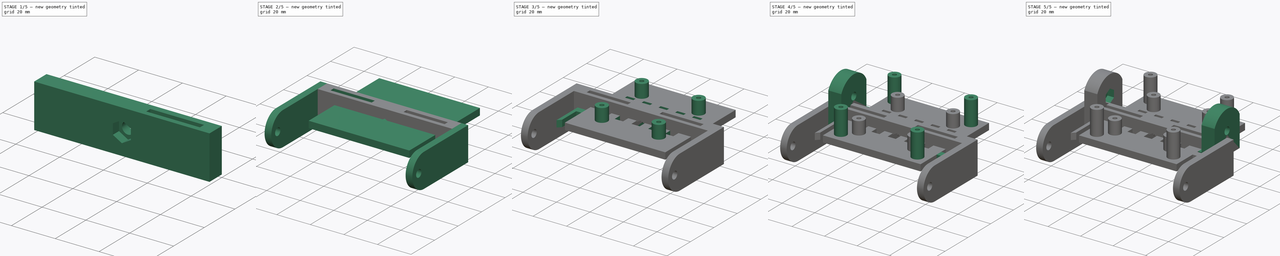
[diagram: build sequence overview — one tinted view per stage of 5, left to right]
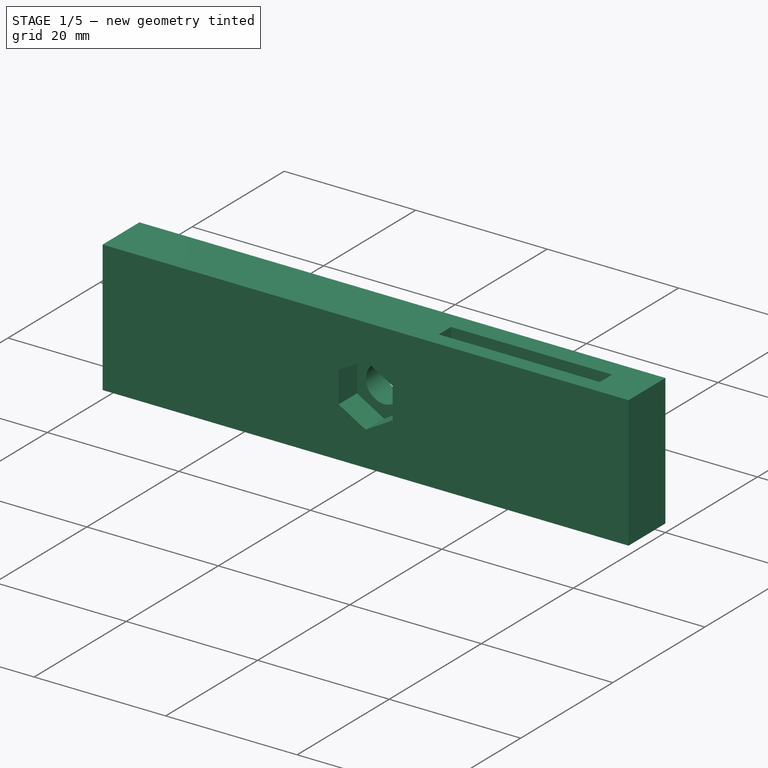
[diagram: stage 1 of 5 — iso view after this stage's code; geometry added in this stage tinted green]
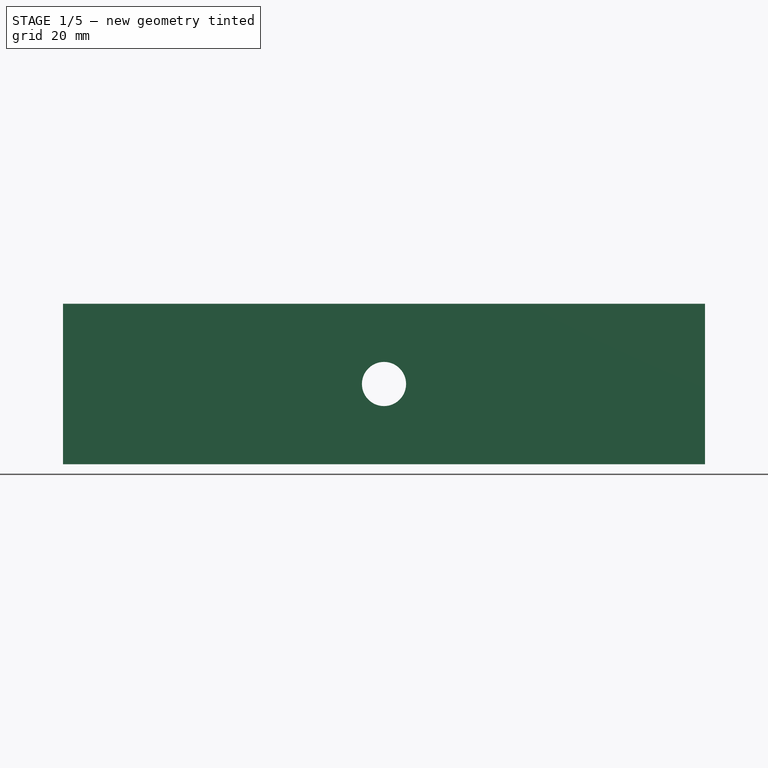
[diagram: stage 1 of 5 — front view after this stage's code; geometry added in this stage tinted green]
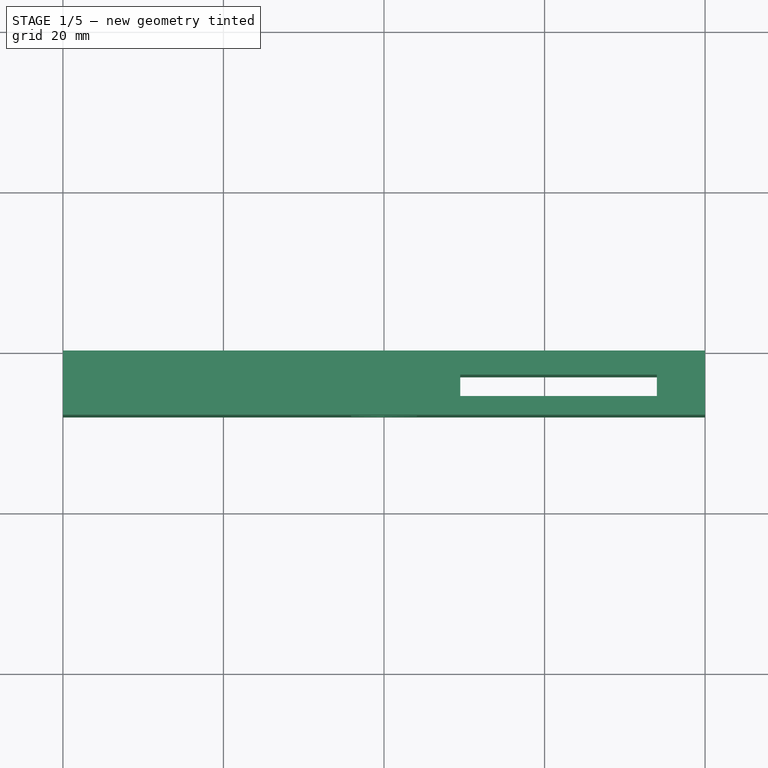
[diagram: stage 1 of 5 — top view after this stage's code; geometry added in this stage tinted green]
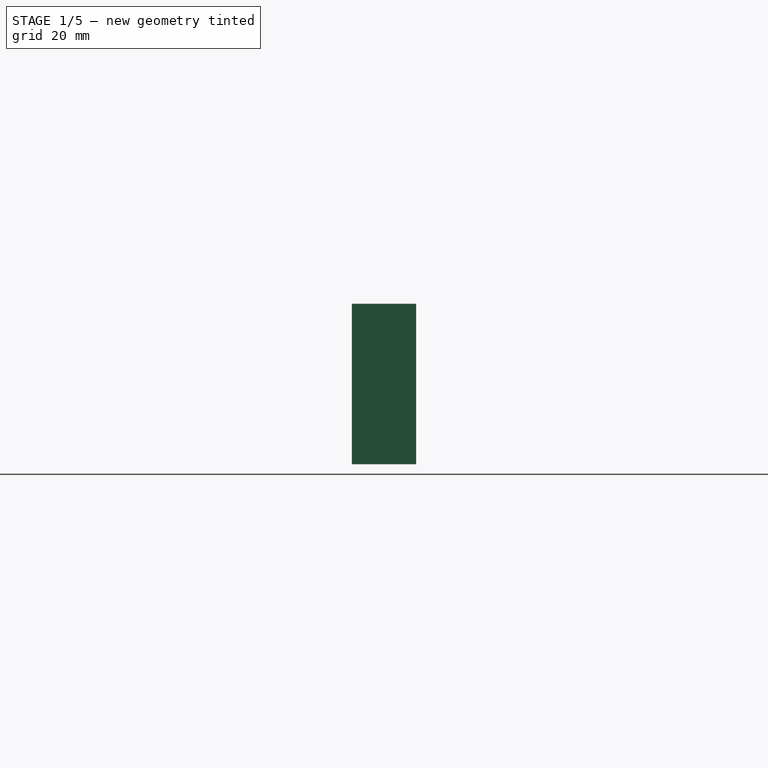
[diagram: stage 1 of 5 — right view after this stage's code; geometry added in this stage tinted green]
FCSTD DOCUMENT  (FreeCAD 1.0R39109 (Git))
Label: LED Light Mount
License: All rights reserved
LicenseURL: https://en.wikipedia.org/wiki/All_rights_reserved
objects: Sketcher::SketchObject×12, PartDesign::Pad×8, PartDesign::Mirrored×5, PartDesign::Pocket×4, PartDesign::Body×3, App::Link×1, App::Part×1
note: 73 computed .brp shape members not serialized (recipe doc carries the construction recipe); baked Part::Feature solids carry a one-line shape summary decoded from their .brp
EXTERNAL_REF file=../Master Document.FCStd obj=Spreadsheet

FEATURE [PartDesign::Body] Body  label="LED Back Plate"
  AllowCompound = false
  Group = -> [Sketch,Pad,Sketch001,Pad001,Sketch003,Sketch009,Pocket008,Sketch012,Pad006,Mirrored005,Sketch014,Sketch015,Pad007,Pad008,Pad009,Sketch016,Pocket,Mirrored,Mirrored006]
  Origin = -> Origin001
  Placement = pos=(0,40.4356,22.1702) rot=(1,0,0;3.40339rad)
  Tip = -> Mirrored006
FEATURE [PartDesign::Pad] Pad010  label="Gimbal Base Pad"
  Direction = (0,-1,2e-16)
  Length = 8
  Length2 = 10
  Placement = pos=(0,0,0) rot=(1,0,0;1.5708rad)
  Profile = -> Sketch005
  ReferenceAxis = -> Sketch005 [N_Axis]
  Suppressed = false
  Type = 0
  expr: Length = <<Monitor Chassis Parameters>>.GSCamPlateThickness * 2
FEATURE [Sketcher::SketchObject] Sketch017
  ArcFitTolerance = 1e-06
  AttachmentSupport = -> [Pad010]
  FullyConstrained = false
  MakeInternals = false
  MapMode = 5
  Placement = pos=(-40,0,0) rot=(0.707107,0,-0.707107;3.14159rad)
  expr: Constraints[11] = <<Monitor Chassis Parameters>>.GSLEDGimbalHoleHeight - <<Monitor Chassis Parameters>>.GSCamAxisHoleDiameter
  expr: Constraints[12] = 0.5 * <<Monitor Chassis Parameters>>.GSCamGimbalDepth
  expr: Constraints[13] = 0.5 * <<Monitor Chassis Parameters>>.GSCamGimbalDepth
  expr: Constraints[6] = <<Monitor Chassis Parameters>>.GSCamAxisHoleDiameter
  expr: Constraints[7] = <<Monitor Chassis Parameters>>.GSLEDGimbalHoleHeight
  sketch-geometry (5):
    g0: LineSegment StartX=-10 StartY=0 StartZ=0 EndX=10 EndY=0 EndZ=0
    g1: LineSegment StartX=10 StartY=0 StartZ=0 EndX=10 EndY=37.5 EndZ=0
    g2: LineSegment StartX=-10 StartY=37.5 StartZ=0 EndX=-10 EndY=0 EndZ=0
    g3: ArcOfCircle CenterX=8e-16 CenterY=37.5 CenterZ=0 NormalX=0 NormalY=0 NormalZ=1 AngleXU=0 Radius=10 StartAngle=0 EndAngle=3.14159
    g4: Circle CenterX=0 CenterY=42 CenterZ=0 NormalX=0 NormalY=0 NormalZ=1 AngleXU=0 Radius=2.25
  constraints (14):
    c: Coincident(g0,g1)
    c: Coincident(g2,g0)
    c: Vertical(g1)
    c: Vertical(g2)
    c: Coincident(g3,g1)
    c: PointOnObject(g4,g-2)
    c: Diameter(g4) = 4.5
    c: DistanceY(g-1,g4) = 42
    c: Horizontal(g3,g3)
    c: Horizontal(g1,g3)
    c: Coincident(g3,g2)
    c: DistanceY(g-1,g3) = 37.5
    c: DistanceX(g0,g-1) = 10
    c: DistanceX(g-1,g0) = 10
FEATURE [PartDesign::Pocket] Pocket009  label="Base Nut Indent Pocket"
  BaseFeature = -> Pad010
  Direction = (0,1,0)
  Length = 4
  Length2 = 5
  Placement = pos=(0,0,0) rot=(1,0,0;1.5708rad)
  Profile = -> Sketch007
  ReferenceAxis = -> Sketch007 [N_Axis]
  Suppressed = false
  Type = 0
  expr: Length = <<Monitor Chassis Parameters>>.GSCamM5NutDepth
FEATURE [PartDesign::Pocket] Pocket010  label="Lightening Pocket"
  BaseFeature = -> Pocket009
  Direction = (0,0,-1)
  Length = 5
  Length2 = 5
  Placement = pos=(0,0,0) rot=(1,0,0;1.5708rad)
  Profile = -> Sketch011
  ReferenceAxis = -> Sketch011 [N_Axis]
  Suppressed = false
  Type = 1
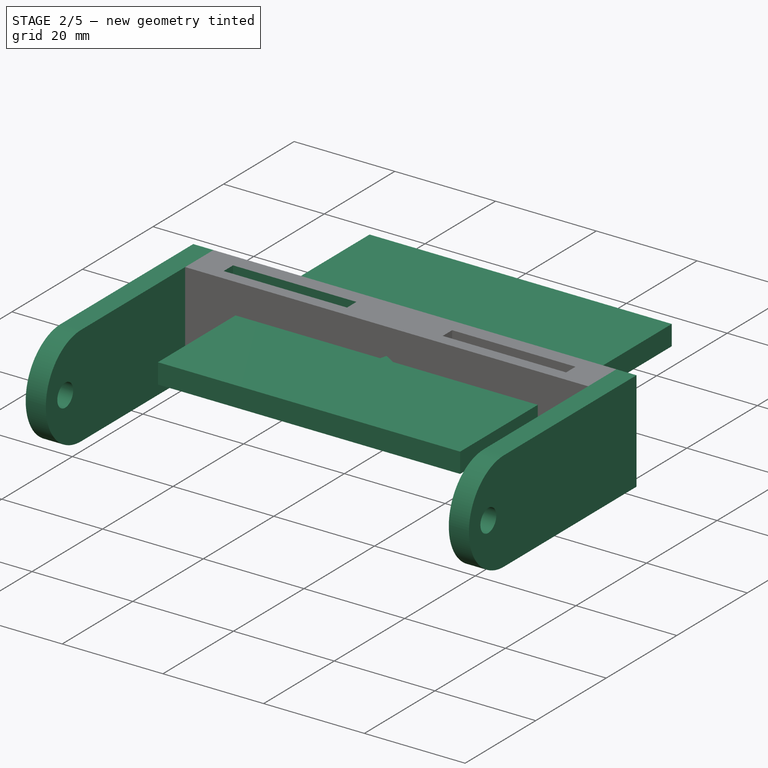
[diagram: stage 2 of 5 — iso view after this stage's code; geometry added in this stage tinted green]
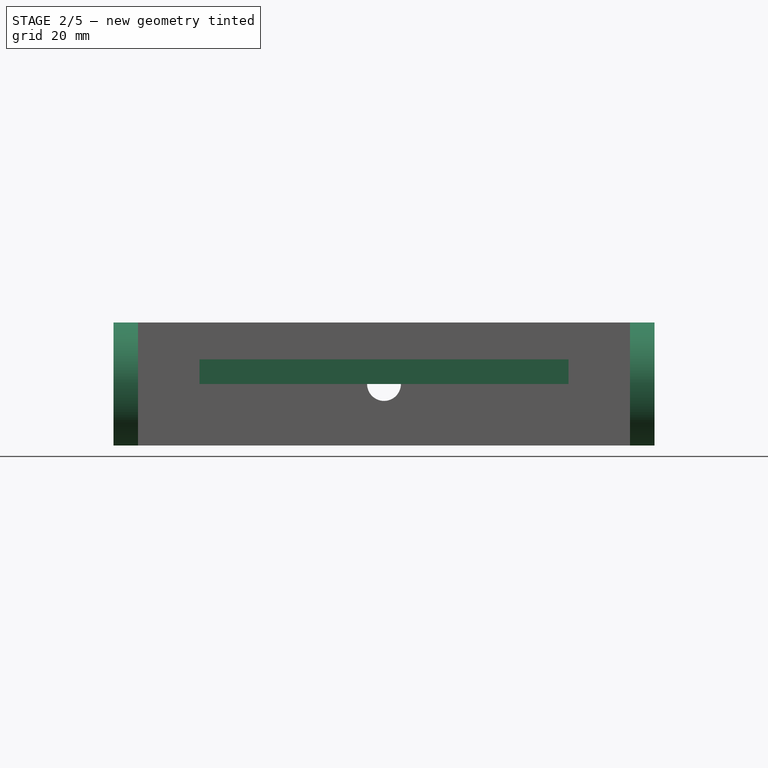
[diagram: stage 2 of 5 — front view after this stage's code; geometry added in this stage tinted green]
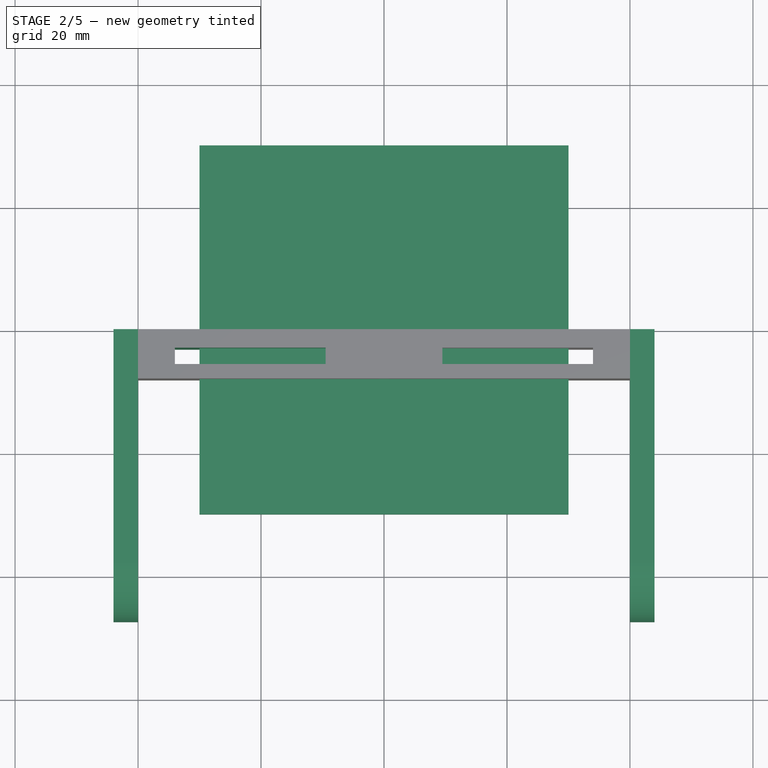
[diagram: stage 2 of 5 — top view after this stage's code; geometry added in this stage tinted green]
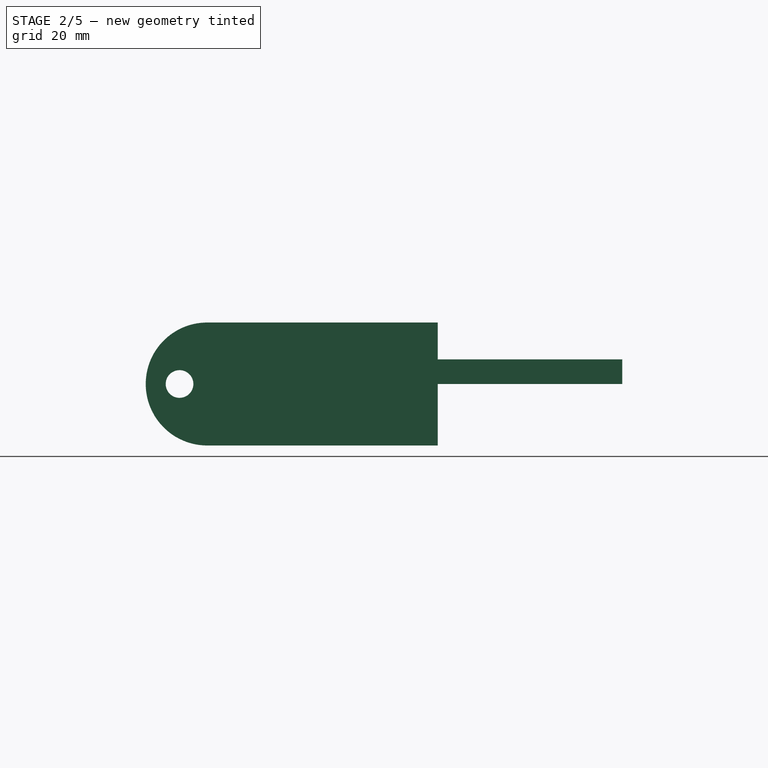
[diagram: stage 2 of 5 — right view after this stage's code; geometry added in this stage tinted green]
FEATURE [Sketcher::SketchObject] Sketch
  ArcFitTolerance = 0
  AttachmentSupport = -> [XY_Plane001]
  FullyConstrained = true
  MakeInternals = false
  MapMode = 5
  expr: Constraints[10] = <<Monitor Chassis Parameters>>.GSLEDBoardHeight / 2
  expr: Constraints[11] = <<Monitor Chassis Parameters>>.GSLEDBoardHeight / 2
  expr: Constraints[8] = <<Monitor Chassis Parameters>>.GSLEDBoardWidth
  expr: Constraints[9] = <<Monitor Chassis Parameters>>.GSLEDBoardHeight
  sketch-geometry (4):
    g0: LineSegment StartX=-30 StartY=30 StartZ=0 EndX=30 EndY=30 EndZ=0
    g1: LineSegment StartX=30 StartY=30 StartZ=0 EndX=30 EndY=-30 EndZ=0
    g2: LineSegment StartX=30 StartY=-30 StartZ=0 EndX=-30 EndY=-30 EndZ=0
    g3: LineSegment StartX=-30 StartY=-30 StartZ=0 EndX=-30 EndY=30 EndZ=0
  constraints (12):
    c: Coincident(g0,g1)
    c: Coincident(g1,g2)
    c: Coincident(g2,g3)
    c: Coincident(g3,g0)
    c: Horizontal(g0)
    c: Horizontal(g2)
    c: Vertical(g1)
    c: Vertical(g3)
    c: DistanceX(g0,g0) = 60
    c: DistanceY(g1,g1) = 60
    c: DistanceX(g2,g-1) = 30
    c: DistanceY(g2,g-1) = 30
FEATURE [PartDesign::Pad] Pad  label="Back Plate Pad"
  Direction = (0,0,1)
  Length = 4
  Length2 = 10
  Profile = -> Sketch
  ReferenceAxis = -> Sketch [N_Axis]
  Suppressed = false
  Type = 0
  expr: Length = <<Monitor Chassis Parameters>>.GSCamPlateThickness
FEATURE [PartDesign::Pad] Pad011  label="Gimbal Riser"
  BaseFeature = -> Pocket010
  Direction = (-1,0,-2e-16)
  Length = 4
  Length2 = 10
  Placement = pos=(0,0,0) rot=(1,0,0;1.5708rad)
  Profile = -> Sketch017
  ReferenceAxis = -> Sketch017 [N_Axis]
  Suppressed = false
  Type = 0
  expr: Length = <<Monitor Chassis Parameters>>.GSCamPlateThickness
FEATURE [PartDesign::Mirrored] Mirrored007  label="Gimbal Riser Mirror"
  BaseFeature = -> Pad011
  MirrorPlane = -> YZ_Plane003
  Originals = -> [Pad011]
  Placement = pos=(0,0,0) rot=(1,0,0;1.5708rad)
  Suppressed = false
  TransformMode = 0
FEATURE [PartDesign::Mirrored] Mirrored008  label="Lightening Pocket Mirror"
  BaseFeature = -> Mirrored007
  MirrorPlane = -> YZ_Plane003
  Originals = -> [Pocket010]
  Placement = pos=(0,0,0) rot=(1,0,0;1.5708rad)
  Suppressed = false
  TransformMode = 0
FEATURE [PartDesign::Body] Body002  label="LED Gimbal"
  AllowCompound = false
  Group = -> [Sketch005,Sketch007,Sketch011,Pad010,Sketch017,Pocket009,Pocket010,Pad011,Mirrored007,Mirrored008]
  Origin = -> Origin003
  Placement = pos=(0,2,9) rot=(1,0,0;3.14159rad)
  Tip = -> Mirrored008
FEATURE [App::Part] Part  label="LED Light Mount Object"
  Group = -> [Body,Body001,Body002]
  Origin = -> Origin
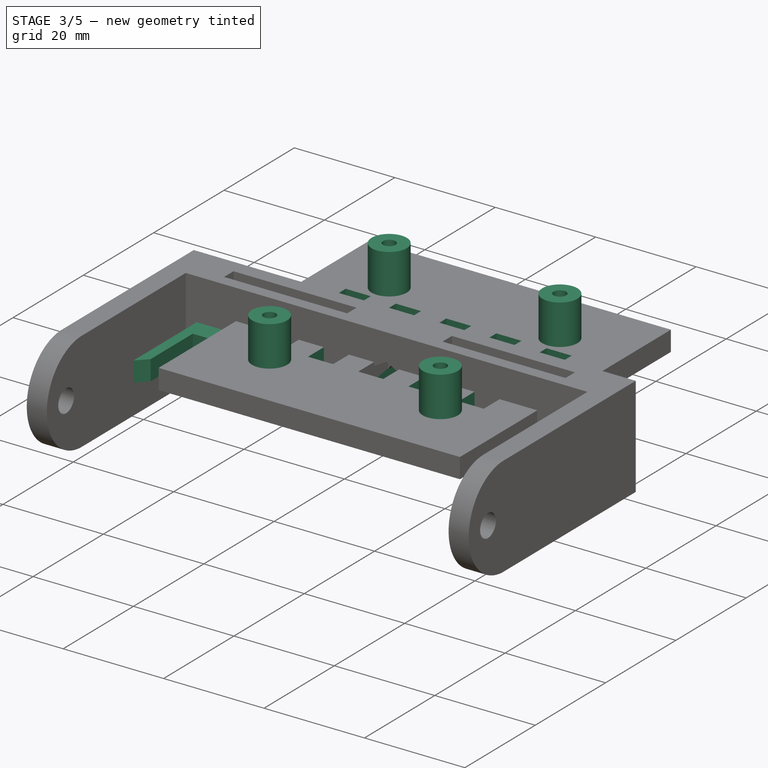
[diagram: stage 3 of 5 — iso view after this stage's code; geometry added in this stage tinted green]
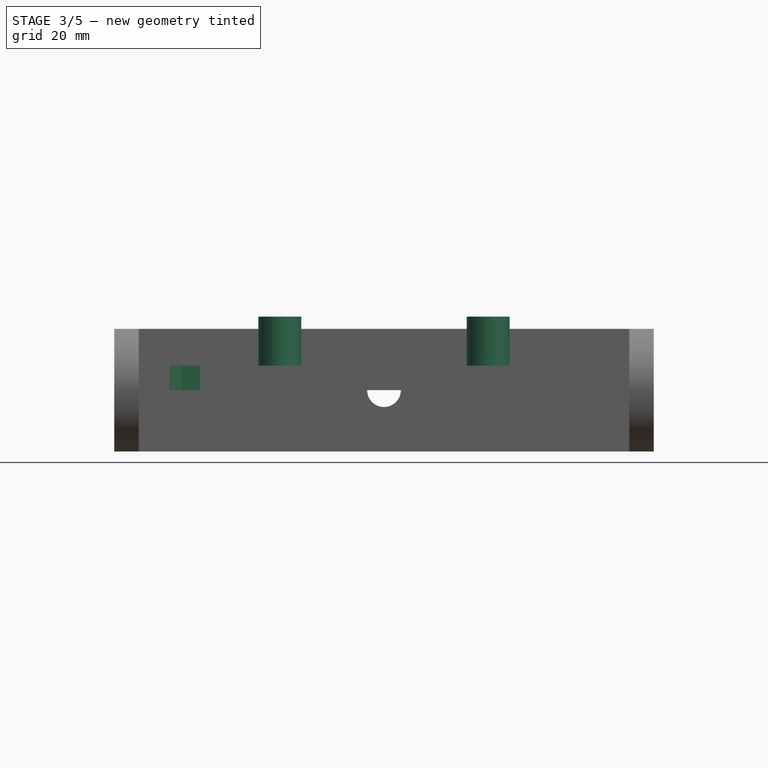
[diagram: stage 3 of 5 — front view after this stage's code; geometry added in this stage tinted green]
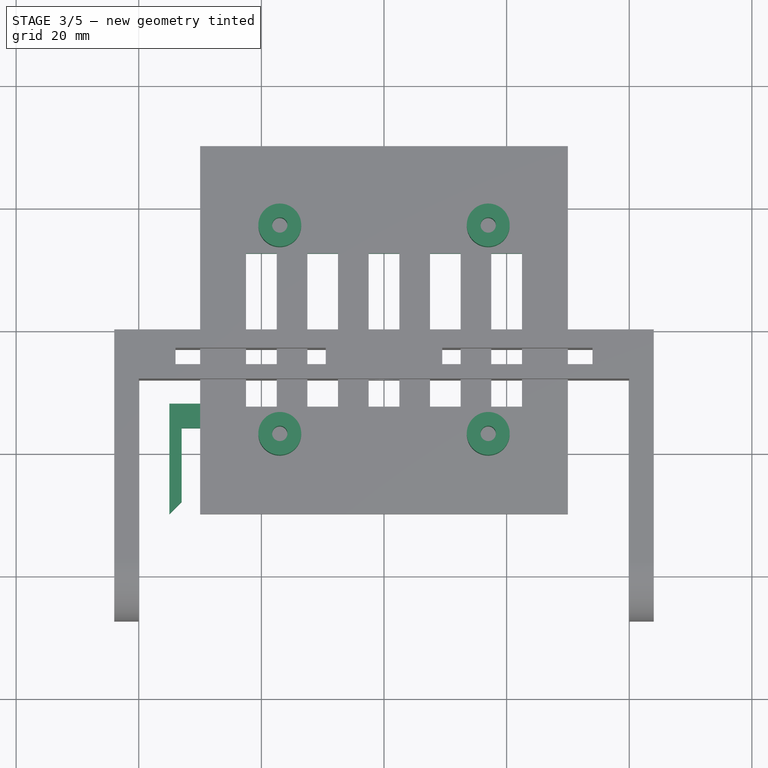
[diagram: stage 3 of 5 — top view after this stage's code; geometry added in this stage tinted green]
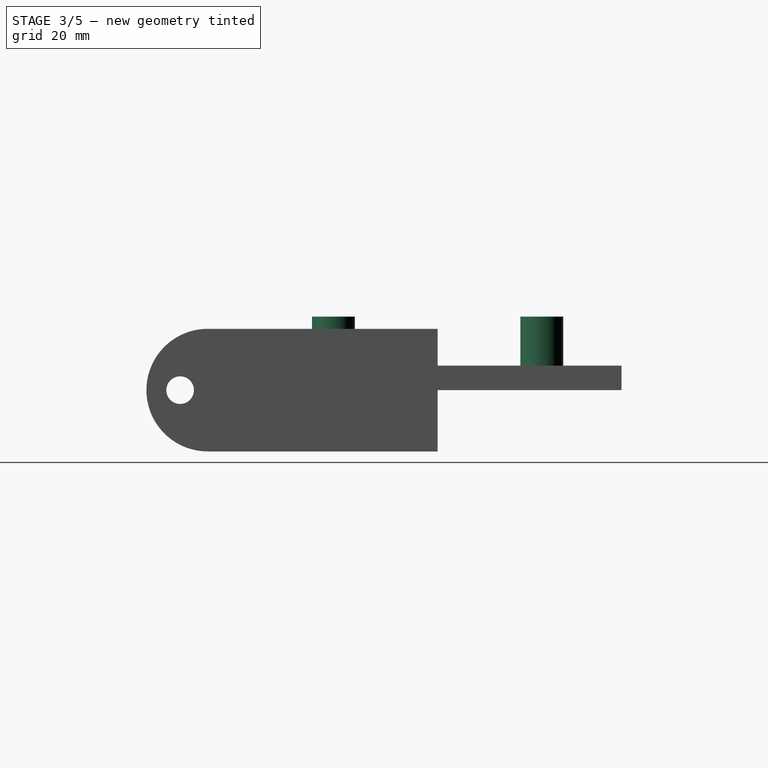
[diagram: stage 3 of 5 — right view after this stage's code; geometry added in this stage tinted green]
FEATURE [Sketcher::SketchObject] Sketch001
  ArcFitTolerance = 0
  AttachmentSupport = -> [Pad]
  FullyConstrained = true
  MakeInternals = false
  MapMode = 5
  Placement = pos=(0,0,4) rot=(0,0,1;0rad)
  expr: Constraints[0] = <<Monitor Chassis Parameters>>.GSLEDMountHoleDiameter
  expr: Constraints[11] = <<Monitor Chassis Parameters>>.GSLEDMountingHoleSeparation
  expr: Constraints[12] = 0.5 * <<Monitor Chassis Parameters>>.GSLEDMountingHoleSeparation
  expr: Constraints[13] = <<Monitor Chassis Parameters>>.GSLEDMountingHoleSeparation
  expr: Constraints[14] = 0.5 * <<Monitor Chassis Parameters>>.GSLEDMountingHoleSeparation
  expr: Constraints[2] = <<Monitor Chassis Parameters>>.GSLEDMountingRiserOuterDiameter
  expr: Constraints[3] = <<Monitor Chassis Parameters>>.GSLEDMountHoleDiameter
  expr: Constraints[4] = <<Monitor Chassis Parameters>>.GSLEDMountHoleDiameter
  expr: Constraints[5] = <<Monitor Chassis Parameters>>.GSLEDMountHoleDiameter
  expr: Constraints[6] = <<Monitor Chassis Parameters>>.GSLEDMountingRiserOuterDiameter
  expr: Constraints[7] = <<Monitor Chassis Parameters>>.GSLEDMountingRiserOuterDiameter
  expr: Constraints[8] = <<Monitor Chassis Parameters>>.GSLEDMountingRiserOuterDiameter
  sketch-geometry (8):
    g0: Circle CenterX=-17 CenterY=17 CenterZ=0 NormalX=0 NormalY=0 NormalZ=1 AngleXU=0 Radius=1.25
    g1: Circle CenterX=-17 CenterY=17 CenterZ=0 NormalX=0 NormalY=0 NormalZ=1 AngleXU=0 Radius=3.5
    g2: Circle CenterX=17 CenterY=17 CenterZ=0 NormalX=0 NormalY=0 NormalZ=1 AngleXU=0 Radius=1.25
    g3: Circle CenterX=-17 CenterY=-17 CenterZ=0 NormalX=0 NormalY=0 NormalZ=1 AngleXU=0 Radius=1.25
    g4: Circle CenterX=17 CenterY=-17 CenterZ=0 NormalX=0 NormalY=0 NormalZ=1 AngleXU=0 Radius=1.25
    g5: Circle CenterX=-17 CenterY=-17 CenterZ=0 NormalX=0 NormalY=0 NormalZ=1 AngleXU=0 Radius=3.5
    g6: Circle CenterX=17 CenterY=-17 CenterZ=0 NormalX=0 NormalY=0 NormalZ=1 AngleXU=0 Radius=3.5
    g7: Circle CenterX=17 CenterY=17 CenterZ=0 NormalX=0 NormalY=0 NormalZ=1 AngleXU=0 Radius=3.5
  constraints (20):
    c: Diameter(g0) = 2.5
    c: Coincident(g1,g0)
    c: Diameter(g1) = 7
    c: Diameter(g2) = 2.5
    c: Diameter(g3) = 2.5
    c: Diameter(g4) = 2.5
    c: Diameter(g6) = 7
    c: Diameter(g5) = 7
    c: Diameter(g7) = 7
    c: Coincident(g7,g2)
    c: Coincident(g6,g4)
    c: DistanceX(g0,g2) = 34
    c: DistanceX(g0,g-1) = 17
    c: DistanceY(g3,g0) = 34
    c: DistanceY(g-1,g0) = 17
    c: Vertical(g0,g3)
    c: Horizontal(g0,g2)
    c: Vertical(g2,g4)
    c: Horizontal(g4,g3)
    c: Coincident(g5,g3)
FEATURE [PartDesign::Pad] Pad001  label="LED Risers Pad"
  BaseFeature = -> Pad
  Direction = (0,0,1)
  Length = 8
  Length2 = 10
  Profile = -> Sketch001
  ReferenceAxis = -> Sketch001 [N_Axis]
  Suppressed = false
  Type = 0
  expr: Length = <<Monitor Chassis Parameters>>.GSLEDMountingRiserHeight
FEATURE [Sketcher::SketchObject] Sketch005
  ArcFitTolerance = 0
  AttachmentSupport = -> [XZ_Plane003]
  FullyConstrained = true
  MakeInternals = false
  MapMode = 5
  Placement = pos=(0,0,0) rot=(1,0,0;1.5708rad)
  expr: Constraints[10] = <<Monitor Chassis Parameters>>.GSCamGimbalDepth
  expr: Constraints[11] = <<Monitor Chassis Parameters>>.GSCamGimbalDepth / 2
  expr: Constraints[13] = <<Monitor Chassis Parameters>>.GSCamM5ScrewHoleDiameter
  expr: Constraints[8] = <<Monitor Chassis Parameters>>.GSLEDBoardWidth + 2 * (<<Monitor Chassis Parameters>>.GSLEDBoardWingThickness + <<Monitor Chassis Parameters>>.GSCamPlateThickness * 2)
  expr: Constraints[9] = 0.5 * <<Monitor Chassis Parameters>>.GSLEDGimbalBaseLength
  sketch-geometry (5):
    g0: LineSegment StartX=-40 StartY=-10 StartZ=0 EndX=40 EndY=-10 EndZ=0
    g1: LineSegment StartX=40 StartY=-10 StartZ=0 EndX=40 EndY=10 EndZ=0
    g2: LineSegment StartX=40 StartY=10 StartZ=0 EndX=-40 EndY=10 EndZ=0
    g3: LineSegment StartX=-40 StartY=10 StartZ=0 EndX=-40 EndY=-10 EndZ=0
    g4: Circle CenterX=0 CenterY=0 CenterZ=0 NormalX=0 NormalY=0 NormalZ=1 AngleXU=0 Radius=2.75
  constraints (14):
    c: Coincident(g0,g1)
    c: Coincident(g1,g2)
    c: Coincident(g2,g3)
    c: Coincident(g3,g0)
    c: Horizontal(g0)
    c: Horizontal(g2)
    c: Vertical(g1)
    c: Vertical(g3)
    c: DistanceX(g0,g0) = 80
    c: DistanceX(g0,g-1) = 40
    c: DistanceY(g1,g1) = 20
    c: DistanceY(g0,g-1) = 10
    c: Coincident(g4,g-1)
    c: Diameter(g4) = 5.5
FEATURE [Sketcher::SketchObject] Sketch007
  ArcFitTolerance = 0
  FullyConstrained = true
  MakeInternals = false
  MapMode = 5
  Placement = pos=(0,-8,0) rot=(1,0,0;1.5708rad)
  expr: Constraints[19] = <<Monitor Chassis Parameters>>.GSCamM5NutHexagonDiameter
  sketch-geometry (7):
    g0: LineSegment StartX=4.11362 StartY=2.375 StartZ=0 EndX=0 EndY=4.75 EndZ=0
    g1: LineSegment StartX=0 StartY=4.75 StartZ=0 EndX=-4.11362 EndY=2.375 EndZ=0
    g2: LineSegment StartX=-4.11362 StartY=2.375 StartZ=0 EndX=-4.11362 EndY=-2.375 EndZ=0
    g3: LineSegment StartX=-4.11362 StartY=-2.375 StartZ=0 EndX=0 EndY=-4.75 EndZ=0
    g4: LineSegment StartX=0 StartY=-4.75 StartZ=0 EndX=4.11362 EndY=-2.375 EndZ=0
    g5: LineSegment StartX=4.11362 StartY=-2.375 StartZ=0 EndX=4.11362 EndY=2.375 EndZ=0
    g6: Circle [constr] CenterX=0 CenterY=0 CenterZ=0 NormalX=0 NormalY=0 NormalZ=1 AngleXU=0 Radius=4.75
  constraints (16):
    c: Coincident(g0,g1)
    c: Coincident(g1,g2)
    c: Coincident(g2,g3)
    c: Coincident(g3,g4)
    c: Coincident(g4,g5)
    c: Coincident(g5,g0)
    c: Equal(g0, g1-g5) x5
    c: PointOnObject(g0,g6)
    c: PointOnObject(g1,g6)
    c: PointOnObject(g2,g6)
    c: PointOnObject(g3,g6)
    c: PointOnObject(g4,g6)
    c: PointOnObject(g5,g6)
    c: Coincident(g6,g-1)
    c: Horizontal(g1,g0)
    c: Diameter(g6) = 9.5
FEATURE [Sketcher::SketchObject] Sketch009
  ArcFitTolerance = 0
  FullyConstrained = true
  MakeInternals = false
  MapMode = 5
  Placement = pos=(0,0,0) rot=(1,0,0;3.14159rad)
  expr: Constraints[10] = <<Monitor Chassis Parameters>>.GSLEDBackplateCoolingSlotLength
  expr: Constraints[11] = 0.5 * <<Monitor Chassis Parameters>>.GSLEDBackplateCoolingSlotLength
  expr: Constraints[52] = <<Monitor Chassis Parameters>>.GSLEDBackplateCoolingSlotWidth
  expr: Constraints[53] = <<Monitor Chassis Parameters>>.GSLEDBackplateCoolingSlotWidth
  expr: Constraints[54] = <<Monitor Chassis Parameters>>.GSLEDBackplateCoolingSlotWidth
  expr: Constraints[55] = <<Monitor Chassis Parameters>>.GSLEDBackplateCoolingSlotWidth
  expr: Constraints[56] = <<Monitor Chassis Parameters>>.GSLEDBackplateCoolingSlotWidth
  expr: Constraints[57] = <<Monitor Chassis Parameters>>.GSLEDBackplateCoolingSlotWidth
  expr: Constraints[58] = <<Monitor Chassis Parameters>>.GSLEDBackplateCoolingSlotWidth
  expr: Constraints[59] = <<Monitor Chassis Parameters>>.GSLEDBackplateCoolingSlotWidth
  expr: Constraints[8] = <<Monitor Chassis Parameters>>.GSLEDBackplateCoolingSlotWidth
  expr: Constraints[9] = 0.5 * <<Monitor Chassis Parameters>>.GSLEDBackplateCoolingSlotWidth
  sketch-geometry (20):
    g0: LineSegment StartX=-2.5 StartY=12.5 StartZ=0 EndX=2.5 EndY=12.5 EndZ=0
    g1: LineSegment StartX=2.5 StartY=12.5 StartZ=0 EndX=2.5 EndY=-12.5 EndZ=0
    g2: LineSegment StartX=2.5 StartY=-12.5 StartZ=0 EndX=-2.5 EndY=-12.5 EndZ=0
    g3: LineSegment StartX=-2.5 StartY=-12.5 StartZ=0 EndX=-2.5 EndY=12.5 EndZ=0
    g4: LineSegment StartX=7.5 StartY=12.5 StartZ=0 EndX=12.5 EndY=12.5 EndZ=0
    g5: LineSegment StartX=12.5 StartY=12.5 StartZ=0 EndX=12.5 EndY=-12.5 EndZ=0
    g6: LineSegment StartX=12.5 StartY=-12.5 StartZ=0 EndX=7.5 EndY=-12.5 EndZ=0
    g7: LineSegment StartX=7.5 StartY=-12.5 StartZ=0 EndX=7.5 EndY=12.5 EndZ=0
    g8: LineSegment StartX=17.5 StartY=12.5 StartZ=0 EndX=22.5 EndY=12.5 EndZ=0
    g9: LineSegment StartX=22.5 StartY=12.5 StartZ=0 EndX=22.5 EndY=-12.5 EndZ=0
    g10: LineSegment StartX=22.5 StartY=-12.5 StartZ=0 EndX=17.5 EndY=-12.5 EndZ=0
    g11: LineSegment StartX=17.5 StartY=-12.5 StartZ=0 EndX=17.5 EndY=12.5 EndZ=0
    g12: LineSegment StartX=-7.5 StartY=12.5 StartZ=0 EndX=-12.5 EndY=12.5 EndZ=0
    g13: LineSegment StartX=-12.5 StartY=12.5 StartZ=0 EndX=-12.5 EndY=-12.5 EndZ=0
    g14: LineSegment StartX=-12.5 StartY=-12.5 StartZ=0 EndX=-7.5 EndY=-12.5 EndZ=0
    g15: LineSegment StartX=-7.5 StartY=-12.5 StartZ=0 EndX=-7.5 EndY=12.5 EndZ=0
    g16: LineSegment StartX=-17.5 StartY=12.5 StartZ=0 EndX=-22.5 EndY=12.5 EndZ=0
    g17: LineSegment StartX=-22.5 StartY=12.5 StartZ=0 EndX=-22.5 EndY=-12.5 EndZ=0
    g18: LineSegment StartX=-22.5 StartY=-12.5 StartZ=0 EndX=-17.5 EndY=-12.5 EndZ=0
    g19: LineSegment StartX=-17.5 StartY=-12.5 StartZ=0 EndX=-17.5 EndY=12.5 EndZ=0
  constraints (60):
    c: Coincident(g0,g1)
    c: Coincident(g1,g2)
    c: Coincident(g2,g3)
    c: Coincident(g3,g0)
    c: Horizontal(g0)
    c: Horizontal(g2)
    c: Vertical(g1)
    c: Vertical(g3)
    c: DistanceX(g0,g0) = 5
    c: DistanceX(g0,g-1) = 2.5
    c: DistanceY(g2,g0) = 25
    c: DistanceY(g-1,g0) = 12.5
    c: Coincident(g4,g5)
    c: Coincident(g5,g6)
    c: Coincident(g6,g7)
    c: Coincident(g7,g4)
    c: Horizontal(g4)
    c: Horizontal(g6)
    c: Vertical(g5)
    c: Vertical(g7)
    c: Coincident(g8,g9)
    c: Coincident(g9,g10)
    c: Coincident(g10,g11)
    c: Coincident(g11,g8)
    c: Horizontal(g8)
    c: Horizontal(g10)
    c: Vertical(g9)
    c: Vertical(g11)
    c: Coincident(g12,g13)
    c: Coincident(g13,g14)
    c: Coincident(g14,g15)
    c: Coincident(g15,g12)
    c: Horizontal(g12)
    c: Horizontal(g14)
    c: Vertical(g13)
    c: Vertical(g15)
    c: Coincident(g16,g17)
    c: Coincident(g17,g18)
    c: Coincident(g18,g19)
    c: Coincident(g19,g16)
    c: Horizontal(g16)
    c: Horizontal(g18)
    c: Vertical(g17)
    c: Vertical(g19)
    c: Horizontal(g16,g12)
    c: Horizontal(g12,g4)
    c: Horizontal(g4,g8)
    c: Horizontal(g8,g0)
    c: Horizontal(g17,g13)
    c: Horizontal(g14,g6)
    c: Horizontal(g6,g10)
    c: Horizontal(g2,g14)
    c: DistanceX(g16,g16) = 5
    c: DistanceX(g16,g12) = 5
    c: DistanceX(g0,g4) = 5
    c: DistanceX(g4,g4) = 5
    c: DistanceX(g4,g8) = 5
    c: DistanceX(g8,g8) = 5
    c: DistanceX(g12,g12) = 5
    c: DistanceX(g12,g0) = 5
FEATURE [Sketcher::SketchObject] Sketch011
  ArcFitTolerance = 0
  FullyConstrained = true
  MakeInternals = false
  MapMode = 5
  Placement = pos=(0,2.2e-15,10) rot=(0,0,1;3.14159rad)
  expr: Constraints[10] = 0.5 * <<Monitor Chassis Parameters>>.GSLEDGimbalBaseLength - <<Monitor Chassis Parameters>>.GSCamM5NutHexagonDiameter - 6
  expr: Constraints[11] = 3
  expr: Constraints[8] = <<Monitor Chassis Parameters>>.GSCamPlateThickness * 2 / 3
  expr: Constraints[9] = <<Monitor Chassis Parameters>>.GSCamM5NutHexagonDiameter
  sketch-geometry (4):
    g0: LineSegment StartX=-34 StartY=5.66667 StartZ=0 EndX=-9.5 EndY=5.66667 EndZ=0
    g1: LineSegment StartX=-9.5 StartY=5.66667 StartZ=0 EndX=-9.5 EndY=3 EndZ=0
    g2: LineSegment StartX=-9.5 StartY=3 StartZ=0 EndX=-34 EndY=3 EndZ=0
    g3: LineSegment StartX=-34 StartY=3 StartZ=0 EndX=-34 EndY=5.66667 EndZ=0
  constraints (12):
    c: Coincident(g0,g1)
    c: Coincident(g1,g2)
    c: Coincident(g2,g3)
    c: Coincident(g3,g0)
    c: Horizontal(g0)
    c: Horizontal(g2)
    c: Vertical(g1)
    c: Vertical(g3)
    c: DistanceY(g3,g3) = 2.66667
    c: DistanceX(g1,g-1) = 9.5
    c: DistanceX(g0,g0) = 24.5
    c: DistanceY(g-1,g1) = 3
FEATURE [PartDesign::Pocket] Pocket008  label="Cooling Slots Pocket"
  BaseFeature = -> Pad001
  Direction = (0,1e-16,1)
  Length = 0
  Length2 = 5
  Profile = -> Sketch009
  ReferenceAxis = -> Sketch009 [N_Axis]
  Suppressed = false
  Type = 2
FEATURE [Sketcher::SketchObject] Sketch012
  ArcFitTolerance = 0
  AttachmentSupport = -> [Pocket008]
  FullyConstrained = true
  MakeInternals = false
  MapMode = 5
  Placement = pos=(0,0,4) rot=(0,0,1;0rad)
  expr: Constraints[11] = 0.5 * <<Monitor Chassis Parameters>>.GSLEDBoardWidth
  expr: Constraints[13] = 3
  expr: Constraints[15] = 18
  expr: Constraints[17] = 0.5 * <<Monitor Chassis Parameters>>.GSLEDBoardWidth
  sketch-geometry (6):
    g0: LineSegment StartX=-30 StartY=-12 StartZ=0 EndX=-35 EndY=-12 EndZ=0
    g1: LineSegment StartX=-35 StartY=-12 StartZ=0 EndX=-35 EndY=-30 EndZ=0
    g2: LineSegment StartX=-35 StartY=-30 StartZ=0 EndX=-33 EndY=-28 EndZ=0
    g3: LineSegment StartX=-33 StartY=-28 StartZ=0 EndX=-33 EndY=-16 EndZ=0
    g4: LineSegment StartX=-33 StartY=-16 StartZ=0 EndX=-30 EndY=-16 EndZ=0
    g5: LineSegment StartX=-30 StartY=-16 StartZ=0 EndX=-30 EndY=-12 EndZ=0
  constraints (18):
    c: Horizontal(g0)
    c: Vertical(g1)
    c: Vertical(g3)
    c: Horizontal(g4)
    c: Coincident(g5,g0)
    c: Vertical(g5)
    c: Coincident(g1,g0)
    c: Coincident(g1,g2)
    c: Coincident(g2,g3)
    c: Coincident(g3,g4)
    c: Coincident(g5,g4)
    c: DistanceX(g0,g-1) = 30
    c: DistanceX(g0,g3) = 2
    c: DistanceX(g3,g4) = 3
    c: DistanceY(g4,g0) = 4
    c: DistanceY(g1,g0) = 18
    c: DistanceY(g2,g3) = 12
    c: DistanceY(g1,g-1) = 30
FEATURE [PartDesign::Pad] Pad006  label="Wire Holder Pad"
  BaseFeature = -> Pocket008
  Direction = (0,0,1)
  Length = 4
  Length2 = 10
  Profile = -> Sketch012
  ReferenceAxis = -> Sketch012 [N_Axis]
  Reversed = true
  Suppressed = false
  Type = 0
  expr: Length = <<Monitor Chassis Parameters>>.GSCamPlateThickness
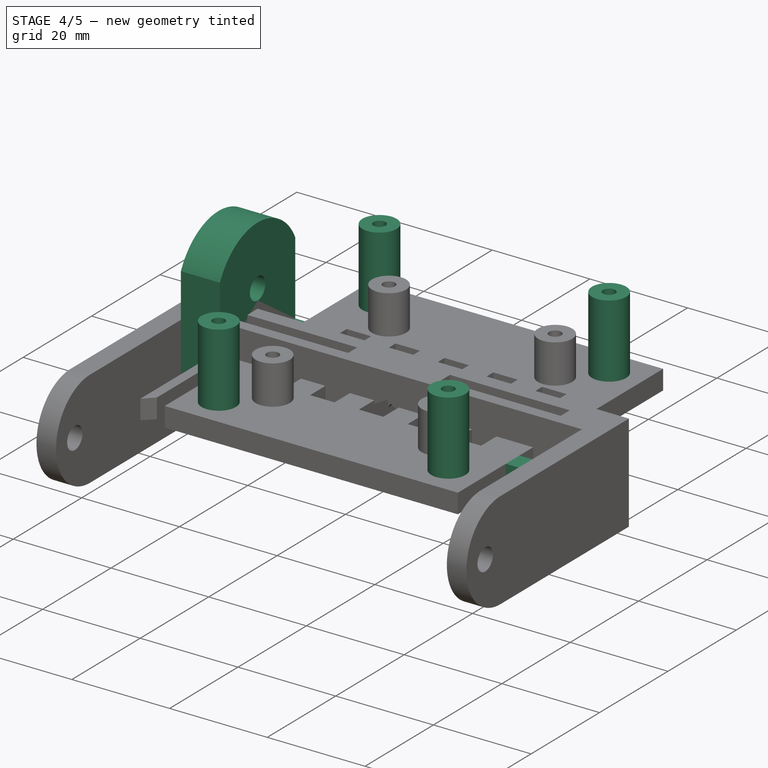
[diagram: stage 4 of 5 — iso view after this stage's code; geometry added in this stage tinted green]
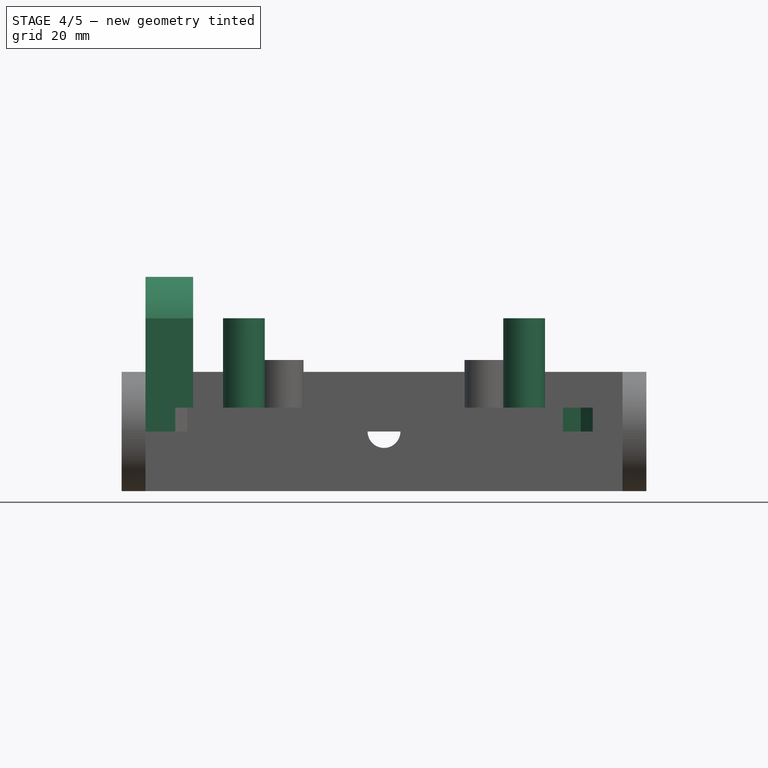
[diagram: stage 4 of 5 — front view after this stage's code; geometry added in this stage tinted green]
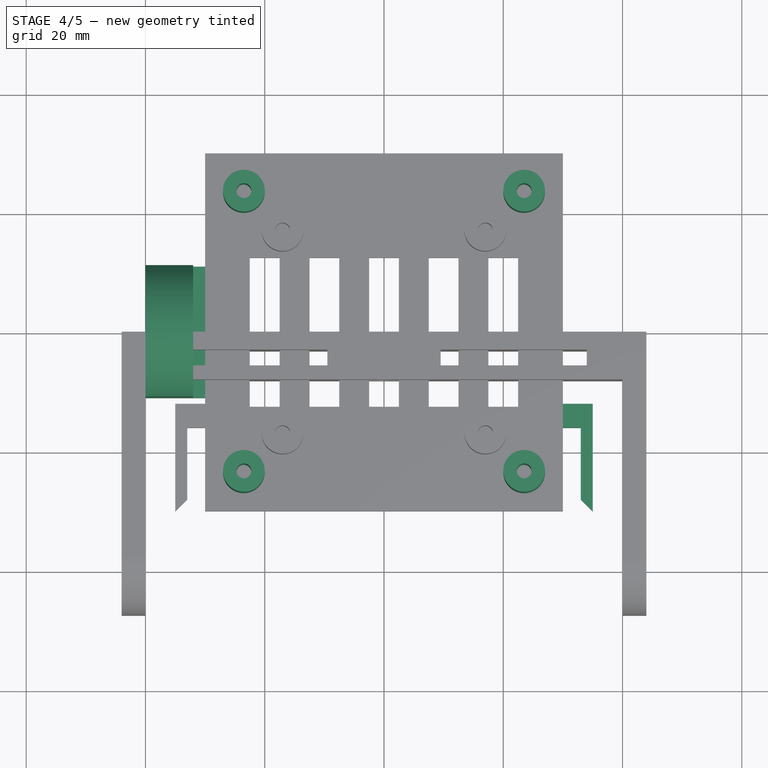
[diagram: stage 4 of 5 — top view after this stage's code; geometry added in this stage tinted green]
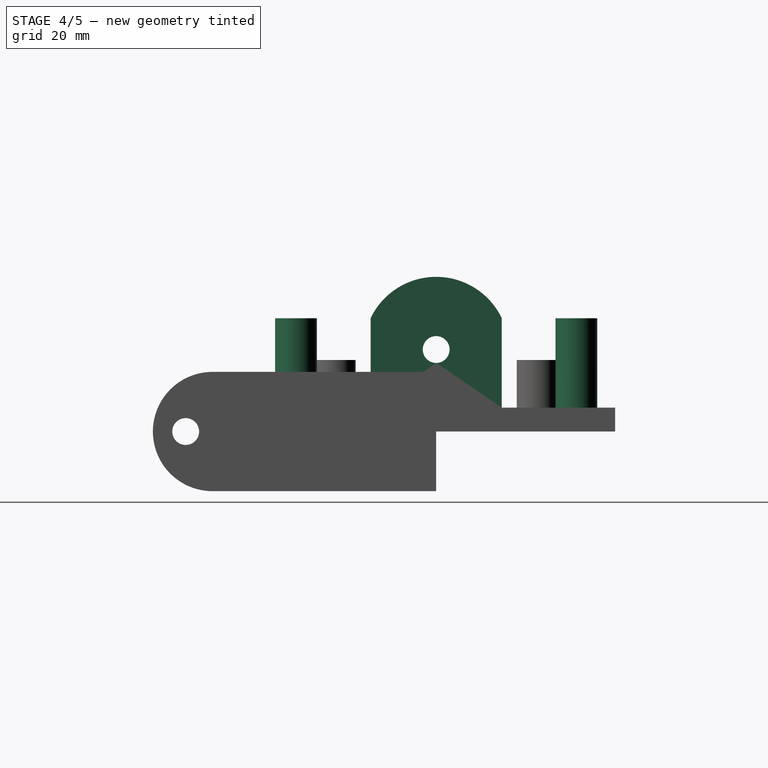
[diagram: stage 4 of 5 — right view after this stage's code; geometry added in this stage tinted green]
FEATURE [PartDesign::Mirrored] Mirrored005  label="Wire Holder Mirror"
  BaseFeature = -> Pad006
  MirrorPlane = -> Sketch012 [V_Axis]
  Originals = -> [Pad006]
  Suppressed = false
  TransformMode = 0
FEATURE [Sketcher::SketchObject] Sketch014  label="LED Lens Riser Sketch"
  ArcFitTolerance = 0
  FullyConstrained = true
  MakeInternals = false
  MapMode = 5
  Placement = pos=(0,0,4) rot=(0,0,1;0rad)
  expr: Constraints[0] = <<Monitor Chassis Parameters>>.GSLEDLensMountingScrewHoleDiameter
  expr: Constraints[16] = <<Monitor Chassis Parameters>>.GSLEDMountingRiserOuterDiameter
  expr: Constraints[17] = <<Monitor Chassis Parameters>>.GSLEDMountingRiserOuterDiameter
  expr: Constraints[18] = <<Monitor Chassis Parameters>>.GSLEDMountingRiserOuterDiameter
  expr: Constraints[19] = <<Monitor Chassis Parameters>>.GSLEDMountingRiserOuterDiameter
  expr: Constraints[1] = <<Monitor Chassis Parameters>>.GSLEDLensMountingScrewHoleDiameter
  expr: Constraints[2] = <<Monitor Chassis Parameters>>.GSLEDLensMountingScrewHoleDiameter
  expr: Constraints[3] = <<Monitor Chassis Parameters>>.GSLEDLensMountingScrewHoleDiameter
  expr: Constraints[4] = <<Monitor Chassis Parameters>>.GSLEDLensMountingHoleSeparation / 2
  expr: Constraints[5] = <<Monitor Chassis Parameters>>.GSLEDLensMountingHoleSeparation / 2
  expr: Constraints[6] = <<Monitor Chassis Parameters>>.GSLEDLensMountingHoleSeparation / 2
  expr: Constraints[7] = <<Monitor Chassis Parameters>>.GSLEDLensMountingHoleSeparation / 2
  sketch-geometry (8):
    g0: Circle CenterX=-23.5 CenterY=23.5 CenterZ=0 NormalX=0 NormalY=0 NormalZ=1 AngleXU=0 Radius=1.25
    g1: Circle CenterX=23.5 CenterY=-23.5 CenterZ=0 NormalX=0 NormalY=0 NormalZ=1 AngleXU=0 Radius=1.25
    g2: Circle CenterX=23.5 CenterY=23.5 CenterZ=0 NormalX=0 NormalY=0 NormalZ=1 AngleXU=0 Radius=1.25
    g3: Circle CenterX=-23.5 CenterY=-23.5 CenterZ=0 NormalX=0 NormalY=0 NormalZ=1 AngleXU=0 Radius=1.25
    g4: Circle CenterX=-23.5 CenterY=23.5 CenterZ=0 NormalX=0 NormalY=0 NormalZ=1 AngleXU=0 Radius=3.5
    g5: Circle CenterX=23.5 CenterY=23.5 CenterZ=0 NormalX=0 NormalY=0 NormalZ=1 AngleXU=0 Radius=3.5
    g6: Circle CenterX=23.5 CenterY=-23.5 CenterZ=0 NormalX=0 NormalY=0 NormalZ=1 AngleXU=0 Radius=3.5
    g7: Circle CenterX=-23.5 CenterY=-23.5 CenterZ=0 NormalX=0 NormalY=0 NormalZ=1 AngleXU=0 Radius=3.5
  constraints (20):
    c: Diameter(g0) = 2.5
    c: Diameter(g2) = 2.5
    c: Diameter(g3) = 2.5
    c: Diameter(g1) = 2.5
    c: DistanceX(g0,g-1) = 23.5
    c: DistanceY(g-1,g0) = 23.5
    c: DistanceY(g1,g-1) = 23.5
    c: DistanceX(g-1,g1) = 23.5
    c: Horizontal(g0,g2)
    c: Vertical(g2,g1)
    c: Horizontal(g3,g1)
    c: Vertical(g0,g3)
    c: Coincident(g4,g0)
    c: Coincident(g5,g2)
    c: Coincident(g6,g1)
    c: Coincident(g7,g3)
    c: Diameter(g4) = 7
    c: Diameter(g5) = 7
    c: Diameter(g7) = 7
    c: Diameter(g6) = 7
FEATURE [App::Link] Link  label="Monitor Chassis Parameters"
  LinkedObject = -> <external ../Master Document.FCStd>#Spreadsheet
FEATURE [PartDesign::Body] Body001  label="TiltAxis"
  AllowCompound = false
  Origin = -> Origin002
FEATURE [Sketcher::SketchObject] Sketch015  label="Wing Sketch"
  ArcFitTolerance = 1e-06
  AttachmentSupport = -> [Pad]
  FullyConstrained = true
  MakeInternals = false
  MapMode = 5
  Placement = pos=(-30,0,0) rot=(0.57735,-0.57735,-0.57735;2.0944rad)
  expr: Constraints[11] = <<Monitor Chassis Parameters>>.GSCamPlateThickness
  expr: Constraints[8] = <<Monitor Chassis Parameters>>.GSCamAxisWidth / 2
  expr: Constraints[9] = <<Monitor Chassis Parameters>>.GSCamAxisWidth / 2
  sketch-geometry (4):
    g0: LineSegment StartX=11 StartY=4 StartZ=0 EndX=-11 EndY=4 EndZ=0
    g1: LineSegment StartX=-11 StartY=4 StartZ=0 EndX=-11 EndY=0 EndZ=0
    g2: LineSegment StartX=-11 StartY=0 StartZ=0 EndX=11 EndY=0 EndZ=0
    g3: LineSegment StartX=11 StartY=0 StartZ=0 EndX=11 EndY=4 EndZ=0
  constraints (12):
    c: Coincident(g0,g1)
    c: Coincident(g1,g2)
    c: Coincident(g2,g3)
    c: Coincident(g3,g0)
    c: Horizontal(g0)
    c: Horizontal(g2)
    c: Vertical(g1)
    c: Vertical(g3)
    c: DistanceX(g0,g-1) = 11
    c: DistanceX(g-1,g0) = 11
    c: Horizontal(g1,g-1)
    c: DistanceY(g1,g0) = 4
FEATURE [PartDesign::Pad] Pad007  label="Backplate Wing Pad"
  BaseFeature = -> Mirrored005
  Direction = (-1,0,0)
  Length = 2
  Length2 = 10
  Profile = -> Sketch015
  ReferenceAxis = -> Sketch015 [N_Axis]
  Suppressed = false
  Type = 0
  expr: Length = <<Monitor Chassis Parameters>>.GSLEDBoardWingThickness
FEATURE [Sketcher::SketchObject] Sketch003
  ArcFitTolerance = 0
  AttachmentSupport = -> [Pad007]
  FullyConstrained = true
  MakeInternals = false
  MapMode = 5
  Placement = pos=(-32,0,0) rot=(0.57735,-0.57735,-0.57735;2.0944rad)
  expr: Constraints[10] = <<Monitor Chassis Parameters>>.GSCamPlateThickness + <<Monitor Chassis Parameters>>.GSLEDZAxisSetback
  expr: Constraints[8] = <<Monitor Chassis Parameters>>.GSCamAxisHoleDiameter
  expr: Constraints[9] = <<Monitor Chassis Parameters>>.GSCamPlateThickness + <<Monitor Chassis Parameters>>.GSLEDZAxisSetback - (<<Monitor Chassis Parameters>>.GSCamAxisHoleDiameter / 2 + 3)
  sketch-geometry (5):
    g0: ArcOfCircle CenterX=0 CenterY=13.75 CenterZ=0 NormalX=0 NormalY=0 NormalZ=1 AngleXU=0 Radius=12.1886 StartAngle=0.445301 EndAngle=2.69629
    g1: LineSegment StartX=-11 StartY=19 StartZ=0 EndX=-11 EndY=0 EndZ=0
    g2: LineSegment StartX=11 StartY=0 StartZ=0 EndX=-11 EndY=0 EndZ=0
    g3: LineSegment StartX=11 StartY=19 StartZ=0 EndX=11 EndY=0 EndZ=0
    g4: Circle CenterX=0 CenterY=13.75 CenterZ=0 NormalX=0 NormalY=0 NormalZ=1 AngleXU=0 Radius=2.25
  constraints (14):
    c: PointOnObject(g0,g-2)
    c: Horizontal(g0,g0)
    c: Coincident(g1,g0)
    c: Vertical(g1)
    c: Horizontal(g2)
    c: Coincident(g3,g0)
    c: Coincident(g3,g2)
    c: Vertical(g2,g0)
    c: Diameter(g4) = 4.5
    c: DistanceY(g-1,g4) = 13.75
    c: DistanceY(g1,g0) = 19
    c: Coincident(g0,g4)
    c: Coincident(g2,g-5)
    c: Coincident(g1,g2)
FEATURE [PartDesign::Pad] Pad008  label="Plate Axis Pad"
  BaseFeature = -> Pad007
  Direction = (-1,0,0)
  Length = 8
  Length2 = 10
  Profile = -> Sketch003
  ReferenceAxis = -> Sketch003 [N_Axis]
  Suppressed = false
  Type = 0
  expr: Length = <<Monitor Chassis Parameters>>.GSCamPlateThickness * 2
FEATURE [PartDesign::Pad] Pad009  label="LED Lens Riser Pad"
  BaseFeature = -> Pad008
  Direction = (0,0,1)
  Length = 15
  Length2 = 10
  Profile = -> Sketch014
  ReferenceAxis = -> Sketch014 [N_Axis]
  Suppressed = false
  Type = 0
  expr: Length = <<Monitor Chassis Parameters>>.GSLEDLensMountingRiserHeight
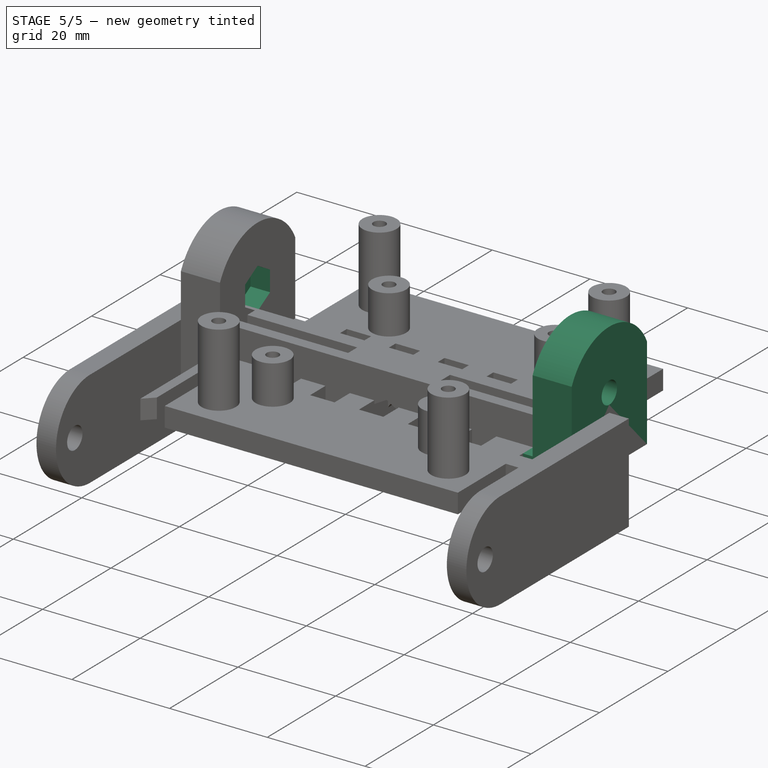
[diagram: stage 5 of 5 — iso view after this stage's code; geometry added in this stage tinted green]
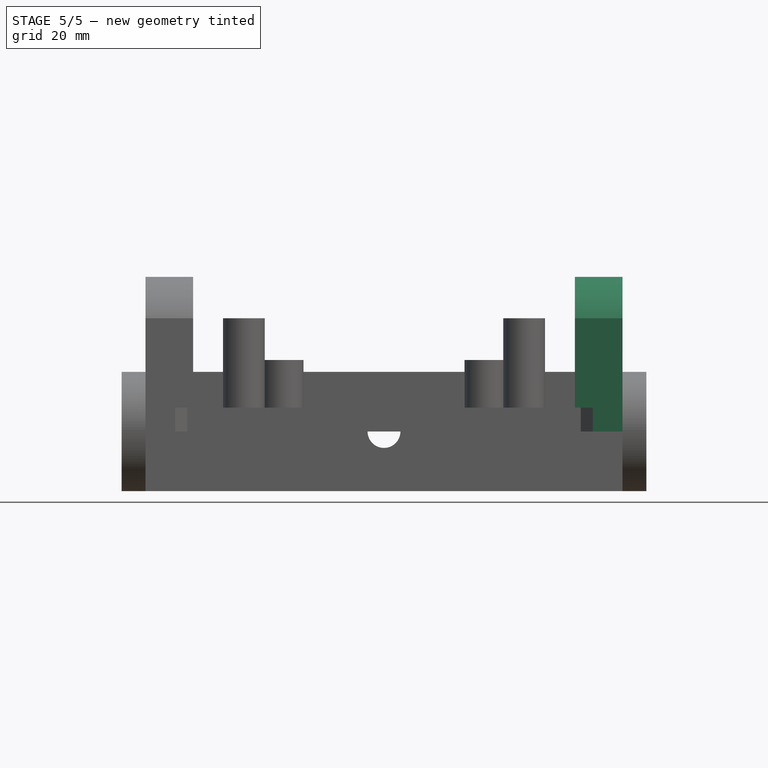
[diagram: stage 5 of 5 — front view after this stage's code; geometry added in this stage tinted green]
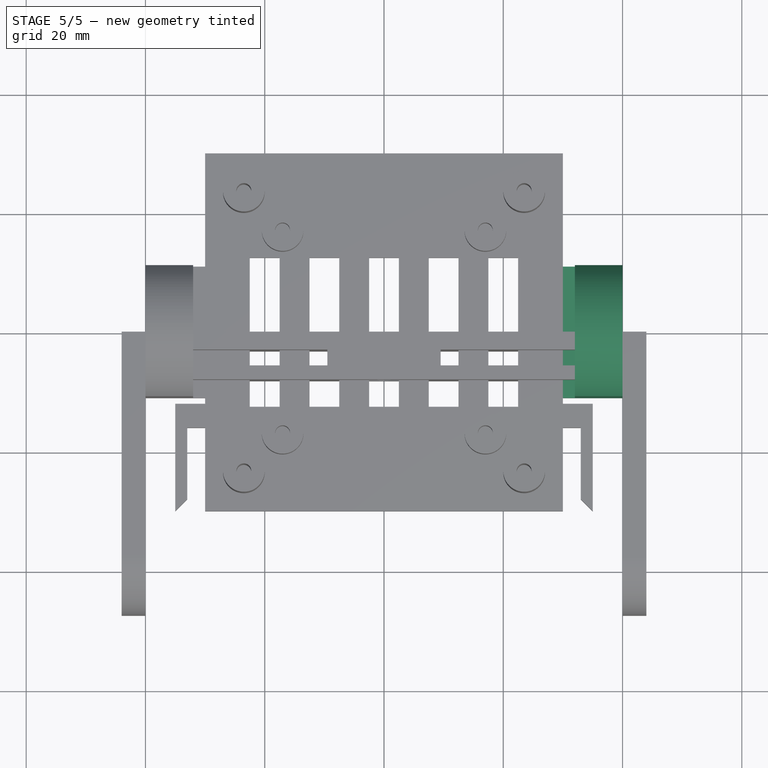
[diagram: stage 5 of 5 — top view after this stage's code; geometry added in this stage tinted green]
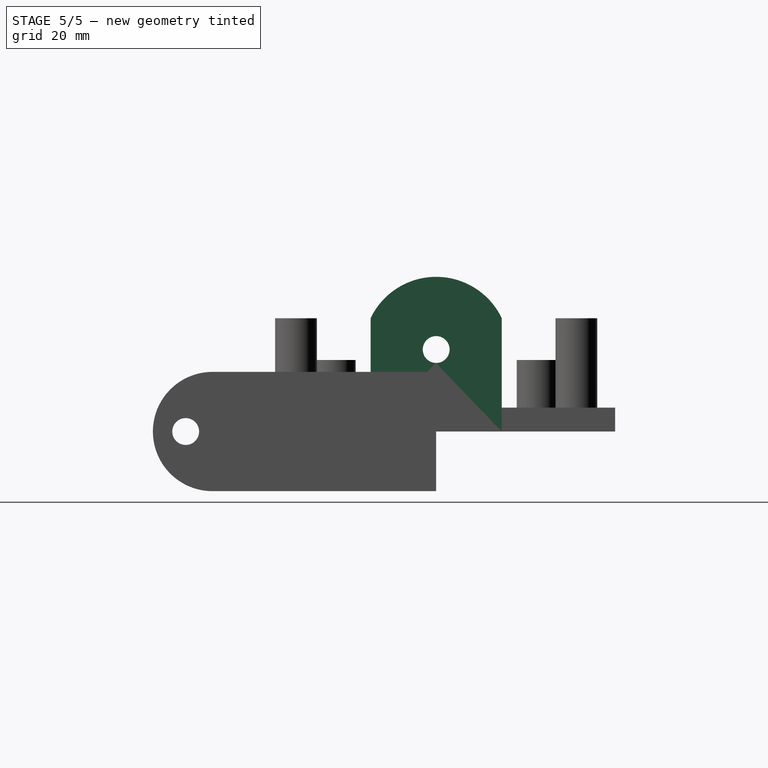
[diagram: stage 5 of 5 — right view after this stage's code; geometry added in this stage tinted green]
FEATURE [Sketcher::SketchObject] Sketch016
  ArcFitTolerance = 1e-06
  AttachmentSupport = -> [Pad009]
  ExternalGeometry = -> [Pad009]
  FullyConstrained = true
  MakeInternals = false
  MapMode = 5
  Placement = pos=(-32,0,0) rot=(0.57735,0.57735,0.57735;2.0944rad)
  expr: Constraints[19] = <<Monitor Chassis Parameters>>.GSCamM4NutHexagonDiameter
  sketch-geometry (7):
    g0: LineSegment StartX=-3.63731 StartY=15.85 StartZ=0 EndX=-3.63731 EndY=11.65 EndZ=0
    g1: LineSegment StartX=-3.63731 StartY=11.65 StartZ=0 EndX=0 EndY=9.55 EndZ=0
    g2: LineSegment StartX=0 StartY=9.55 StartZ=0 EndX=3.63731 EndY=11.65 EndZ=0
    g3: LineSegment StartX=3.63731 StartY=11.65 StartZ=0 EndX=3.63731 EndY=15.85 EndZ=0
    g4: LineSegment StartX=3.63731 StartY=15.85 StartZ=0 EndX=4e-16 EndY=17.95 EndZ=0
    g5: LineSegment StartX=4e-16 StartY=17.95 StartZ=0 EndX=-3.63731 EndY=15.85 EndZ=0
    g6: Circle [constr] CenterX=0 CenterY=13.75 CenterZ=0 NormalX=0 NormalY=0 NormalZ=1 AngleXU=0 Radius=4.2
  constraints (16):
    c: Coincident(g0,g1)
    c: Coincident(g1,g2)
    c: Coincident(g2,g3)
    c: Coincident(g3,g4)
    c: Coincident(g4,g5)
    c: Coincident(g5,g0)
    c: Equal(g0, g1-g5) x5
    c: PointOnObject(g0,g6)
    c: PointOnObject(g1,g6)
    c: PointOnObject(g2,g6)
    c: PointOnObject(g3,g6)
    c: PointOnObject(g4,g6)
    c: PointOnObject(g5,g6)
    c: Coincident(g6,g-3)
    c: Horizontal(g0,g3)
    c: Diameter(g6) = 8.4
FEATURE [PartDesign::Pocket] Pocket  label="Gimbal Nut Indent Pocket"
  BaseFeature = -> Pad009
  Direction = (-1,0,0)
  Length = 4
  Length2 = 5
  Profile = -> Sketch016
  ReferenceAxis = -> Sketch016 [N_Axis]
  Suppressed = false
  Type = 0
  expr: Length = <<Monitor Chassis Parameters>>.GSCamM4SNutDepth
FEATURE [PartDesign::Mirrored] Mirrored  label="Backplate Axis Mirror"
  BaseFeature = -> Pocket
  MirrorPlane = -> YZ_Plane001
  Originals = -> [Pad007,Pad008]
  Suppressed = false
  TransformMode = 0
FEATURE [PartDesign::Mirrored] Mirrored006  label="Gimbal Nut Indent Mirror"
  BaseFeature = -> Mirrored
  MirrorPlane = -> YZ_Plane001
  Originals = -> [Pocket]
  Suppressed = false
  TransformMode = 0
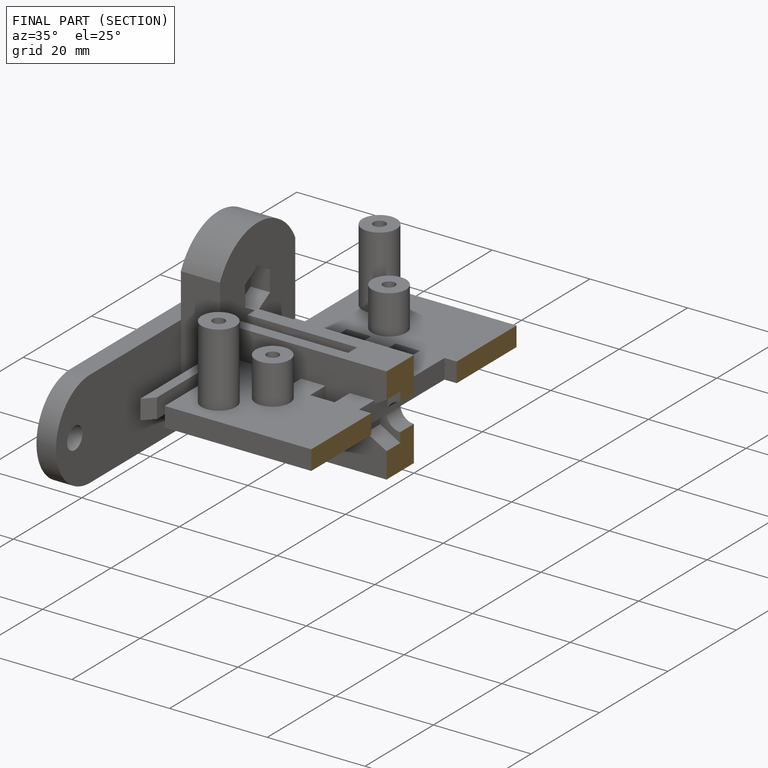
[diagram: finished part — half-section view (interior)]
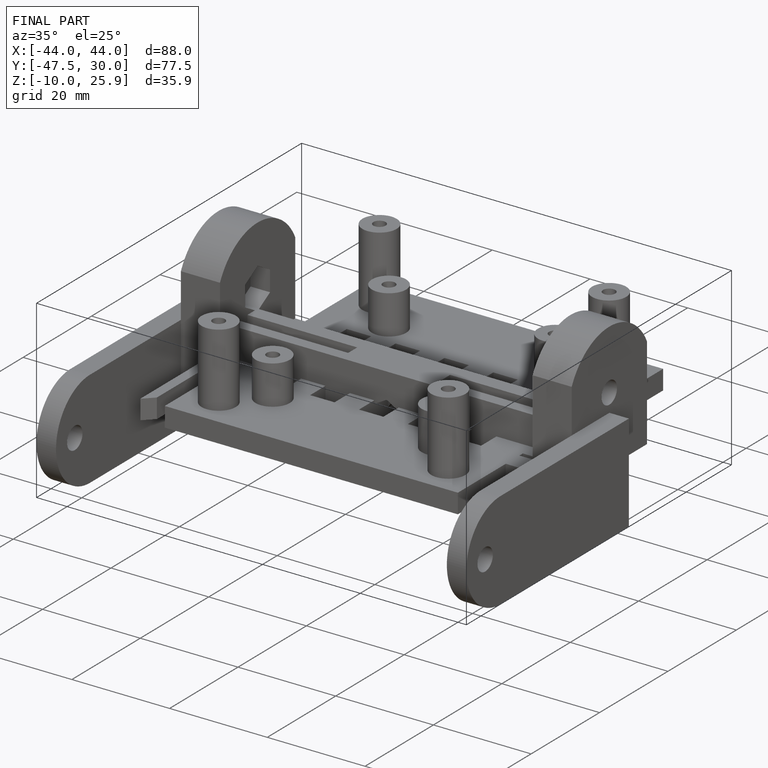
[diagram: finished part — iso view with bounding-box wireframe]
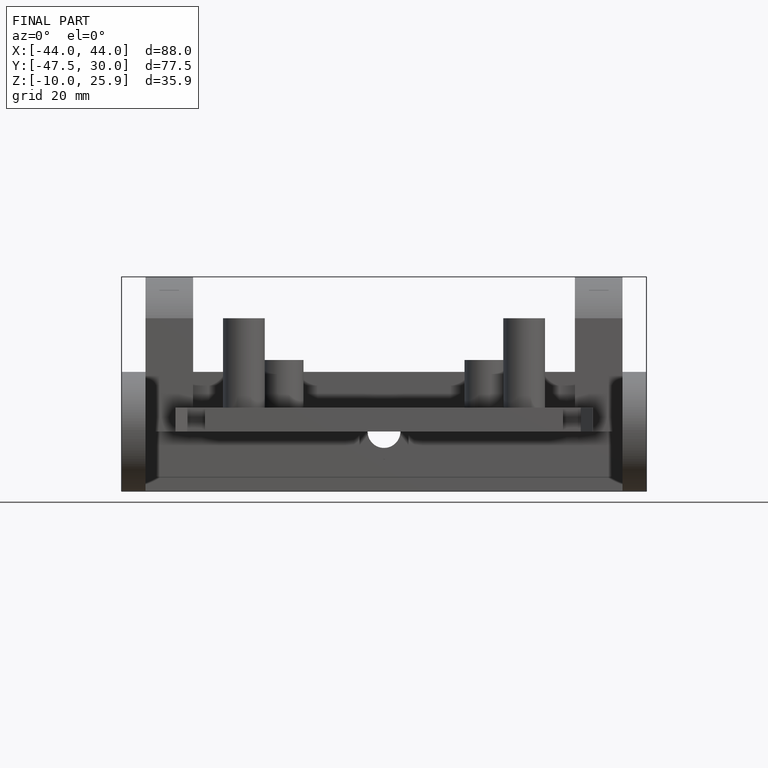
[diagram: finished part — front view with bounding-box wireframe]
